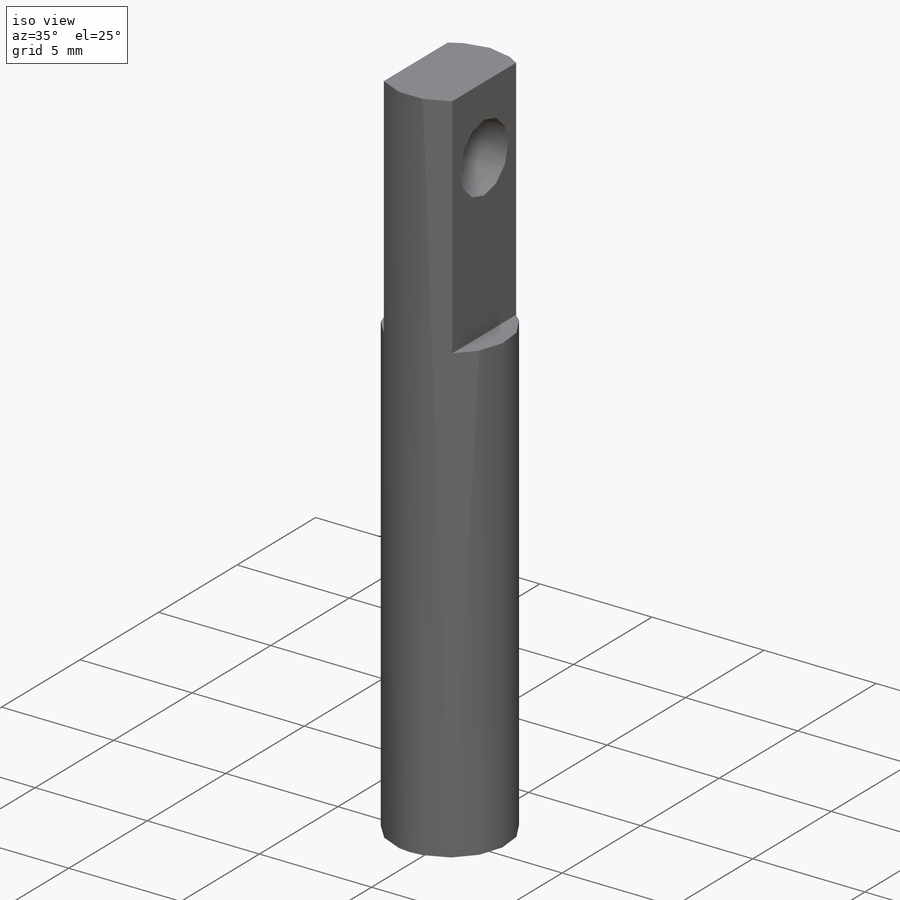
[diagram: iso view]
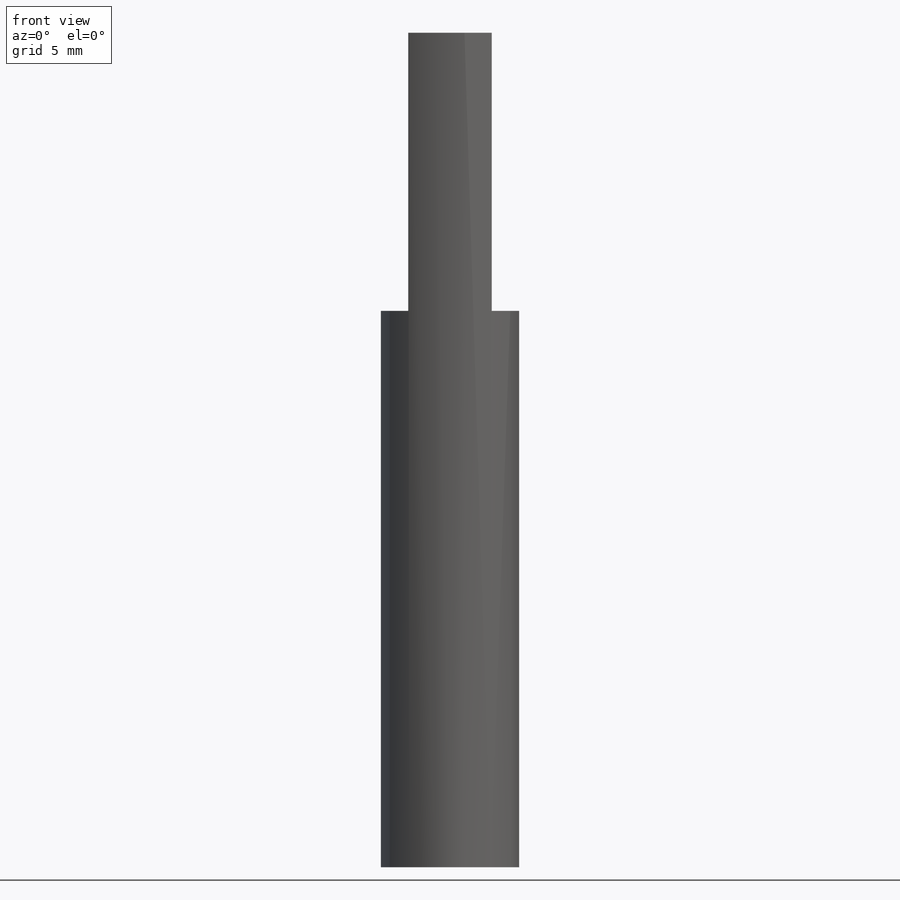
[diagram: front view]
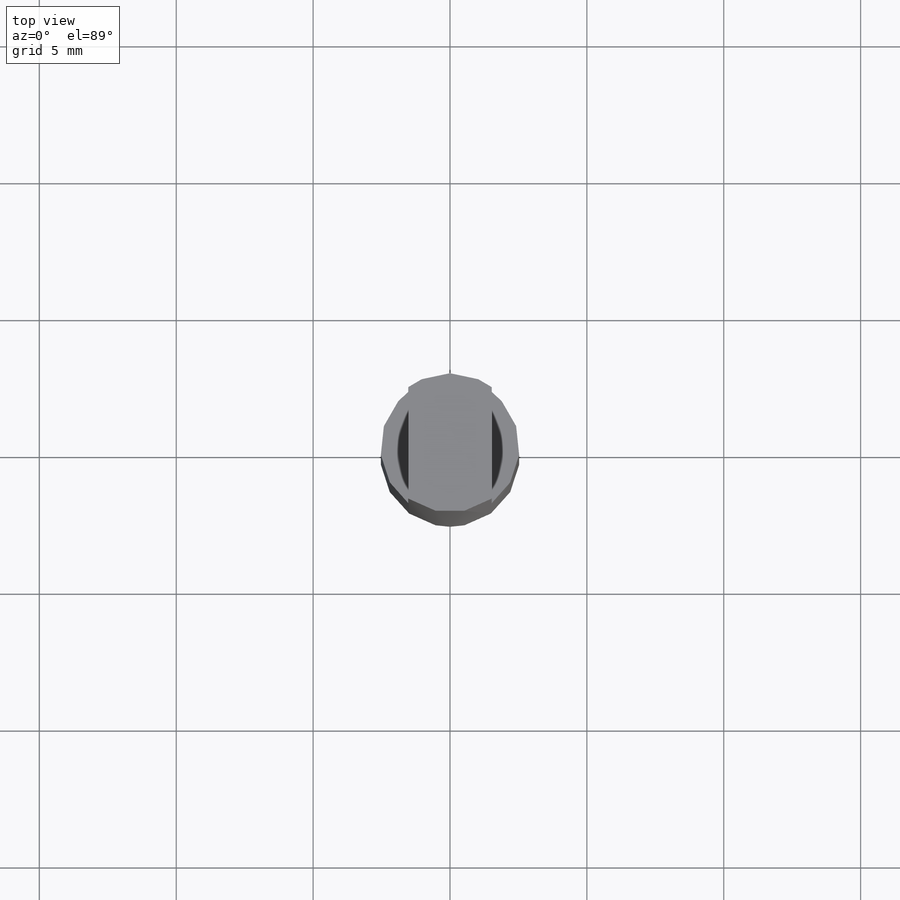
[diagram: top view]
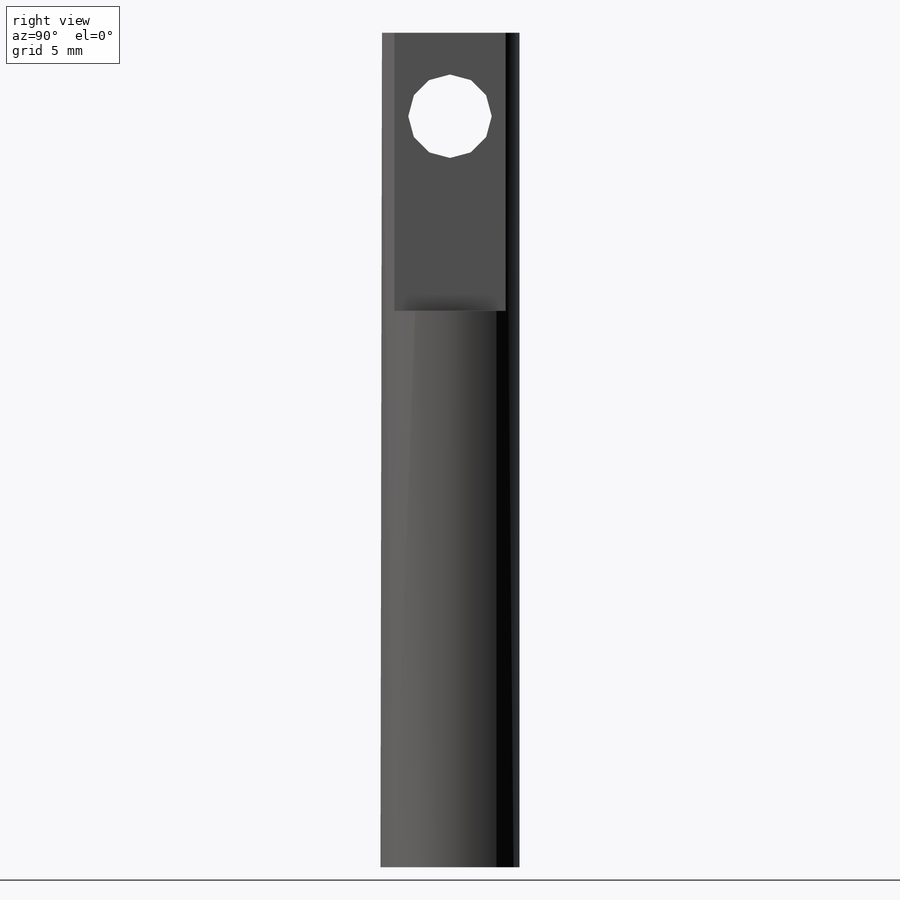
[diagram: right view]
SOLIDWORKS PART (.sldprt)
format: sldprt  version: not decoded by parser v0  size: 146,432 bytes
history: native  units: mm
features: plane x3, sketch x3, cut_extrude x2, material x1, extrude x1 + 1 further entry (+7 scaffold rows collapsed)
feature tree (18):
  scaffold x7  (default folders/planes/origin — collapsed)
  material  "Material <not specified>"
  plane  "정면"
  plane  "윗면"
  plane  "우측면"
  "원점"
  sketch  "Sketch1"  dims[D1=5.08mm]
  extrude  "Extrude1"  Depth=30.48mm
  sketch  "Sketch2"  dims[D1=3.048mm D2=1.524mm D3=2.032mm]
  cut_extrude  "Cut-Extrude1"  Depth=10.16mm
  sketch  "Sketch4"  dims[c1.D3=3.048mm c1.D1=3.048mm c1.D2=2.032mm c2.D3=2.0mm]
  cut_extrude  "Cut-Extrude2"  Depth=10mm
decode coverage: 6 of 6 modeling features carry decoded parameters; 1 rows unclassified (native names shown)
note: suppression state not decoded; provenance and decode notes live in map.json
